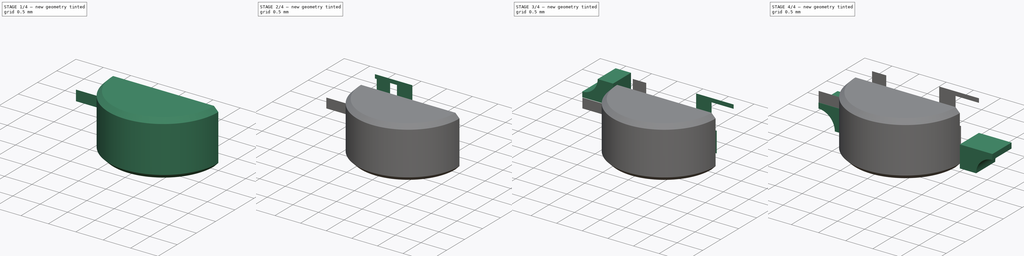
[diagram: build sequence overview — one tinted view per stage of 4, left to right]
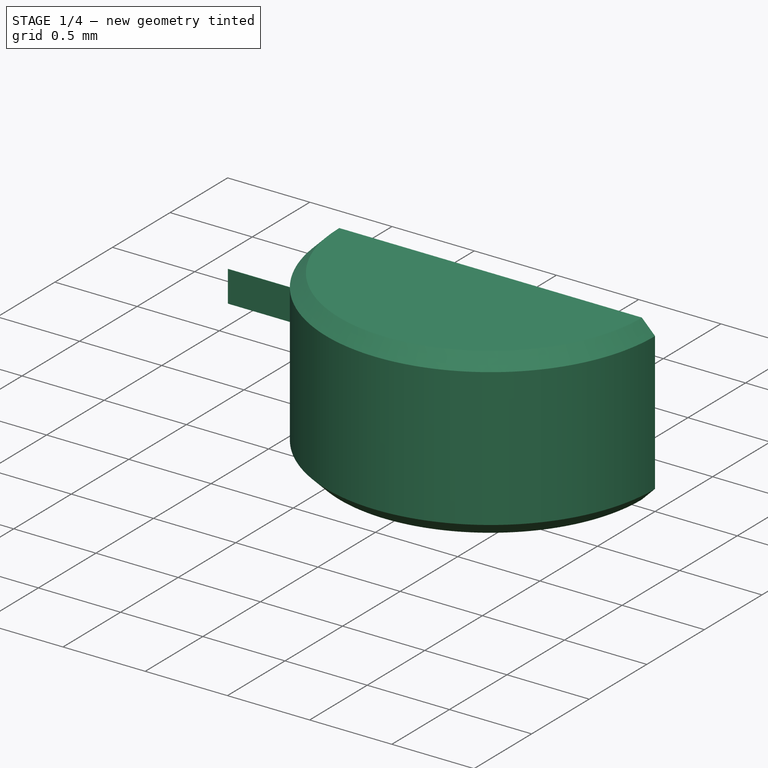
[diagram: stage 1 of 4 — iso view after this stage's code; geometry added in this stage tinted green]
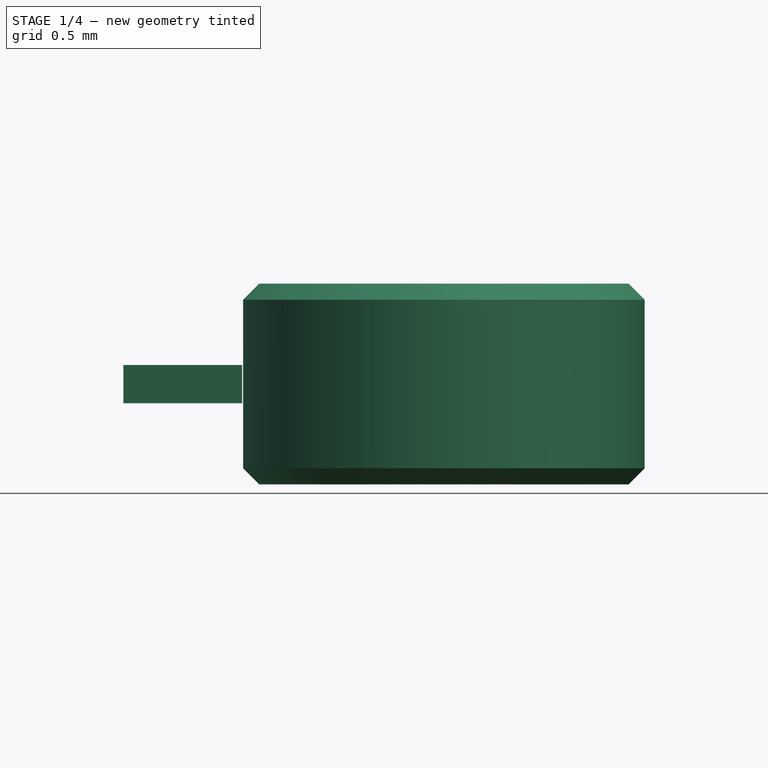
[diagram: stage 1 of 4 — front view after this stage's code; geometry added in this stage tinted green]
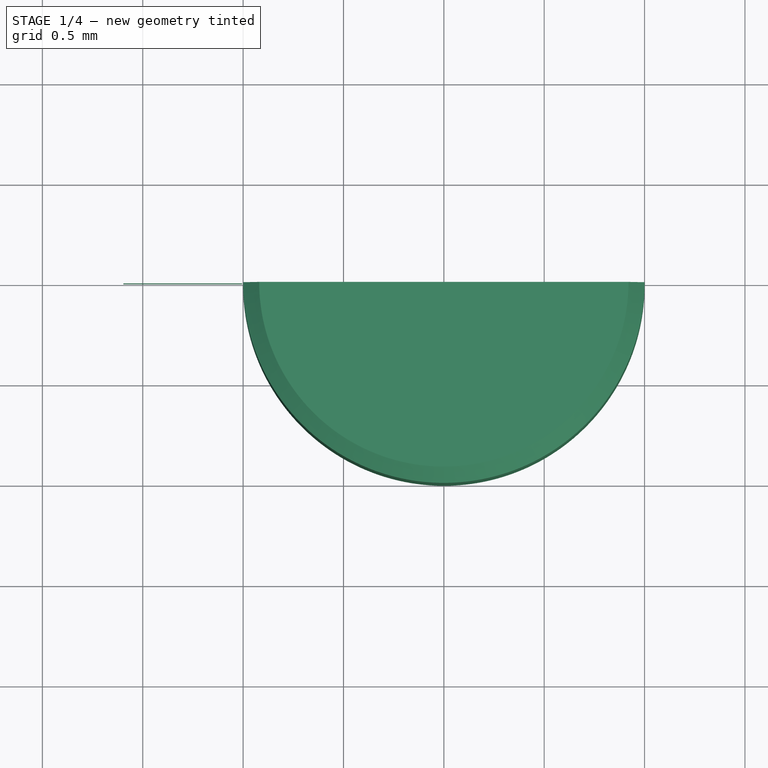
[diagram: stage 1 of 4 — top view after this stage's code; geometry added in this stage tinted green]
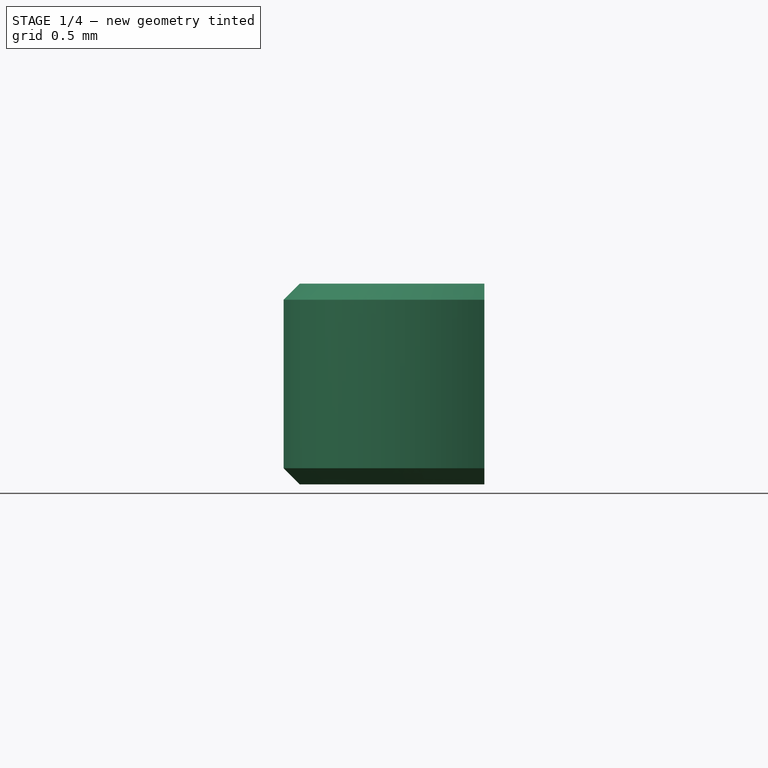
[diagram: stage 1 of 4 — right view after this stage's code; geometry added in this stage tinted green]
FCSTD DOCUMENT  (FreeCAD 1.0R39285 (Git))
Label: LED_RGB_TUOZHAN_P4-1204RGBWS2-1.5T-A_Horizontal
License: All rights reserved
LicenseURL: https://en.wikipedia.org/wiki/All_rights_reserved
objects: Sketcher::SketchObject×7, PartDesign::Pad×6, PartDesign::Body×6, PartDesign::ShapeBinder×6, PartDesign::Plane×5, Part::Mirroring×4, PartDesign::Chamfer×1
note: 56 computed .brp shape members not serialized (recipe doc carries the construction recipe); baked Part::Feature solids carry a one-line shape summary decoded from their .brp

FEATURE [PartDesign::Body] Body
  AllowCompound = false
  Group = -> [Sketch,Pad]
  Origin = -> Origin
  Tip = -> Pad
FEATURE [PartDesign::ShapeBinder] CopyPad
  Placement = pos=(0,-0.5,1e-16) rot=(0,0,1;0rad)
  TraceSupport = false
FEATURE [PartDesign::Plane] DatumPlane
  AttachmentSupport = -> [CopyPad]
  Length = 60
  MapMode = 5
  Placement = pos=(0,-0.5,1e-16) rot=(1,0,0;1.5708rad)
  ResizeMode = 0
  Width = 60
FEATURE [Sketcher::SketchObject] Sketch002
  ArcFitTolerance = 1e-06
  AttachmentSupport = -> [DatumPlane]
  FullyConstrained = true
  MakeInternals = false
  MapMode = 3
  Placement = pos=(0,-0.5,1e-16) rot=(1,0,0;3.14159rad)
  sketch-geometry (2):
    g0: ArcOfCircle CenterX=0 CenterY=0 CenterZ=0 NormalX=0 NormalY=0 NormalZ=1 AngleXU=0 Radius=1 StartAngle=0 EndAngle=3.14159
    g1: LineSegment StartX=-1 StartY=1e-16 StartZ=0 EndX=1 EndY=0 EndZ=0
  constraints (6):
    c: Radius(g0) = 1
    c: Coincident(g0,g-1)
    c: PointOnObject(g0,g-1)
    c: PointOnObject(g0,g-1)
    c: Coincident(g1,g0)
    c: Coincident(g1,g0)
FEATURE [PartDesign::Pad] Pad001
  Direction = (0,0,-1)
  Length = 1
  Length2 = 10
  Midplane = true
  Placement = pos=(0,-0.5,1e-16) rot=(1,0,0;1.5708rad)
  Profile = -> Sketch002
  ReferenceAxis = -> Sketch002 [N_Axis]
  Refine = true
  Suppressed = false
  Type = 0
FEATURE [PartDesign::ShapeBinder] CopyPad003
  Placement = pos=(0,0,0) rot=(1,0,0;1.5708rad)
  TraceSupport = false
FEATURE [PartDesign::Chamfer] Chamfer
  Angle = 45
  Base = -> Pad001 [Edge4,Edge3]
  BaseFeature = -> Pad001
  ChamferType = 0
  FlipDirection = false
  Placement = pos=(0,-0.5,1e-16) rot=(1,0,0;1.5708rad)
  Refine = true
  Size = 0.08
  Size2 = 1
  SupportTransform = false
  Suppressed = false
  UseAllEdges = false
FEATURE [PartDesign::Body] Body001
  AllowCompound = false
  Group = -> [DatumPlane,CopyPad,Sketch002,Pad001,Chamfer]
  Origin = -> Origin001
  Tip = -> Chamfer
FEATURE [PartDesign::ShapeBinder] CopyPad004
  Placement = pos=(0,-0.5,1e-16) rot=(0,0,1;0rad)
  TraceSupport = false
FEATURE [PartDesign::Body] Body004
  AllowCompound = false
  Group = -> [DatumPlane003,CopyPad002,Sketch005,Pad004,CopyPad003,CopyPad004]
  Origin = -> Origin004
  Tip = -> Pad004
FEATURE [PartDesign::ShapeBinder] CopyPad005
  Placement = pos=(0,-0.5,1e-16) rot=(0,0,1;0rad)
  TraceSupport = false
FEATURE [PartDesign::Plane] DatumPlane004
  AttachmentSupport = -> [CopyPad005]
  Length = 60
  MapMode = 5
  Placement = pos=(0,-0.5,1e-16) rot=(1,0,0;1.5708rad)
  ResizeMode = 0
  Width = 60
FEATURE [Sketcher::SketchObject] Sketch006
  ArcFitTolerance = 1e-06
  AttachmentSupport = -> [DatumPlane004]
  FullyConstrained = false
  MakeInternals = false
  MapMode = 5
  Placement = pos=(0,-0.5,1e-16) rot=(1,0,0;1.5708rad)
  sketch-geometry (4):
    g0: LineSegment StartX=-1.59633 StartY=0.094645 StartZ=0 EndX=-1.59633 EndY=-0.095591 EndZ=0
    g1: LineSegment StartX=-1.59633 StartY=-0.095591 StartZ=0 EndX=-1.00528 EndY=-0.095591 EndZ=0
    g2: LineSegment StartX=-1.00528 StartY=-0.095591 StartZ=0 EndX=-1.00528 EndY=0.094645 EndZ=0
    g3: LineSegment StartX=-1.00528 StartY=0.094645 StartZ=0 EndX=-1.59633 EndY=0.094645 EndZ=0
  constraints (8):
    c: Coincident(g0,g1)
    c: Coincident(g1,g2)
    c: Coincident(g2,g3)
    c: Coincident(g3,g0)
    c: Vertical(g0)
    c: Vertical(g2)
    c: Horizontal(g1)
    c: Horizontal(g3)
FEATURE [PartDesign::Pad] Pad005
  Direction = (0,-1,2e-16)
  Length = 0.002
  Length2 = 10
  Placement = pos=(0,-0.5,1e-16) rot=(1,0,0;1.5708rad)
  Profile = -> Sketch006
  ReferenceAxis = -> Sketch006 [N_Axis]
  Refine = true
  Suppressed = false
  Type = 0
FEATURE [PartDesign::Body] Body006
  AllowCompound = false
  Group = -> [DatumPlane004,CopyPad005,Sketch006,Pad005]
  Origin = -> Origin006
  Tip = -> Pad005
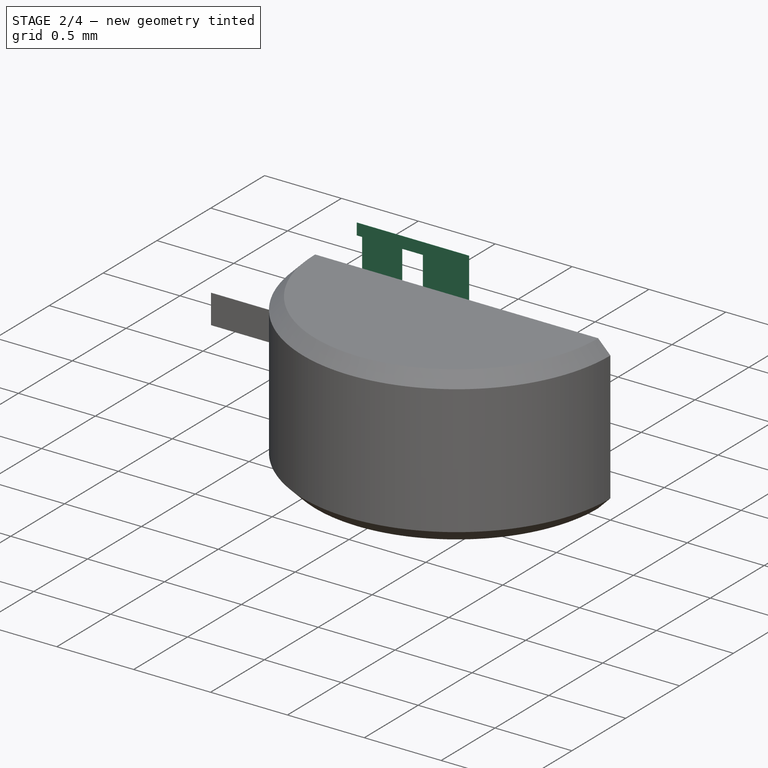
[diagram: stage 2 of 4 — iso view after this stage's code; geometry added in this stage tinted green]
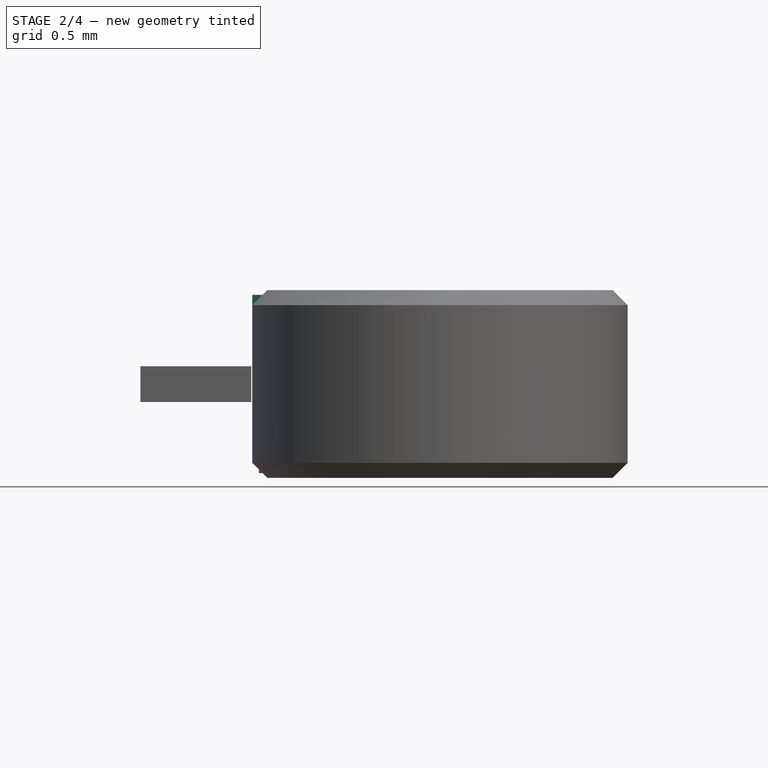
[diagram: stage 2 of 4 — front view after this stage's code; geometry added in this stage tinted green]
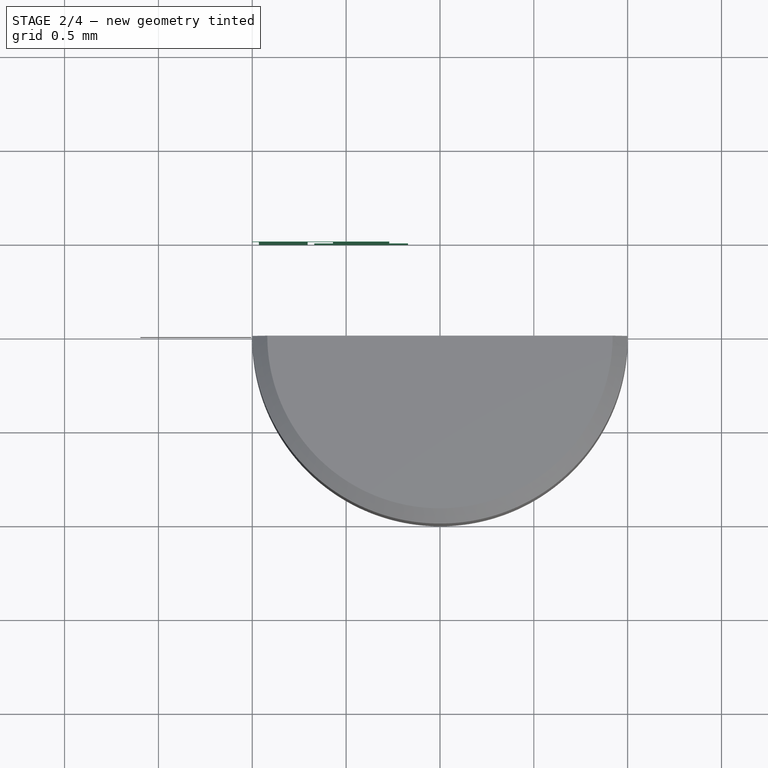
[diagram: stage 2 of 4 — top view after this stage's code; geometry added in this stage tinted green]
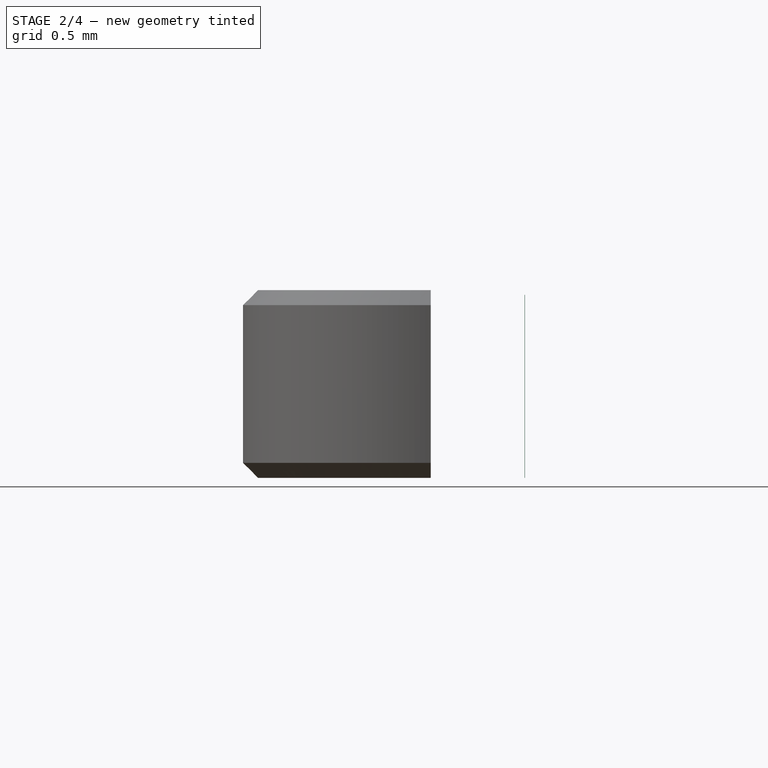
[diagram: stage 2 of 4 — right view after this stage's code; geometry added in this stage tinted green]
FEATURE [Sketcher::SketchObject] Sketch
  ArcFitTolerance = 1e-06
  AttachmentSupport = -> [XZ_Plane]
  FullyConstrained = true
  MakeInternals = false
  MapMode = 5
  Placement = pos=(0,0,0) rot=(1,0,0;1.5708rad)
  sketch-geometry (20):
    g0: LineSegment [constr] StartX=-1.3 StartY=0.5 StartZ=0 EndX=1.3 EndY=0.5 EndZ=0
    g1: LineSegment [constr] StartX=-1.3 StartY=-0.5 StartZ=0 EndX=1.3 EndY=-0.5 EndZ=0
    g2: LineSegment [constr] StartX=1.6 StartY=0.2 StartZ=0 EndX=1.6 EndY=-0.2 EndZ=0
    g3: ArcOfCircle [constr] CenterX=1.6 CenterY=0.5 CenterZ=0 NormalX=0 NormalY=0 NormalZ=1 AngleXU=0 Radius=0.3 StartAngle=3.14159 EndAngle=4.71239
    g4: ArcOfCircle [constr] CenterX=1.6 CenterY=-0.5 CenterZ=0 NormalX=0 NormalY=0 NormalZ=1 AngleXU=0 Radius=0.3 StartAngle=1.5708 EndAngle=3.14159
    g5: LineSegment [constr] StartX=-1.6 StartY=0.2 StartZ=0 EndX=-1.6 EndY=-0.2 EndZ=0
    g6: ArcOfCircle [constr] CenterX=-1.6 CenterY=-0.5 CenterZ=0 NormalX=0 NormalY=0 NormalZ=1 AngleXU=0 Radius=0.3 StartAngle=0 EndAngle=1.5708
    g7: ArcOfCircle [constr] CenterX=-1.6 CenterY=0.5 CenterZ=0 NormalX=0 NormalY=0 NormalZ=1 AngleXU=0 Radius=0.3 StartAngle=4.71239 EndAngle=6.28319
    g8: LineSegment StartX=-1 StartY=0.5 StartZ=0 EndX=1 EndY=0.5 EndZ=0
    g9: LineSegment StartX=1 StartY=0.5 StartZ=0 EndX=1 EndY=0.1 EndZ=0
    g10: LineSegment StartX=1 StartY=0.1 StartZ=0 EndX=1.6 EndY=0.1 EndZ=0
    g11: LineSegment StartX=1.6 StartY=0.1 StartZ=0 EndX=1.6 EndY=-0.1 EndZ=0
    g12: LineSegment StartX=1.6 StartY=-0.1 StartZ=0 EndX=1 EndY=-0.1 EndZ=0
    g13: LineSegment StartX=1 StartY=-0.1 StartZ=0 EndX=1 EndY=-0.5 EndZ=0
    g14: LineSegment StartX=1 StartY=-0.5 StartZ=0 EndX=-1 EndY=-0.5 EndZ=0
    g15: LineSegment StartX=-1 StartY=-0.5 StartZ=0 EndX=-1 EndY=-0.1 EndZ=0
    g16: LineSegment StartX=-1 StartY=-0.1 StartZ=0 EndX=-1.6 EndY=-0.1 EndZ=0
    g17: LineSegment StartX=-1.6 StartY=-0.1 StartZ=0 EndX=-1.6 EndY=0.1 EndZ=0
    g18: LineSegment StartX=-1.6 StartY=0.1 StartZ=0 EndX=-1 EndY=0.1 EndZ=0
    g19: LineSegment StartX=-1 StartY=0.1 StartZ=0 EndX=-1 EndY=0.5 EndZ=0
  constraints (63):
    c: Horizontal(g0)
    c: Horizontal(g1)
    c: DistanceY(g1,g0) = 1
    c: Vertical(g2)
    c: Coincident(g3,g0)
    c: Coincident(g3,g2)
    c: Radius(g3) = 0.3
    c: Coincident(g4,g2)
    c: Coincident(g4,g1)
    c: Vertical(g5)
    c: Coincident(g6,g1)
    c: Coincident(g6,g5)
    c: Coincident(g7,g0)
    c: Coincident(g7,g5)
    c: Horizontal(g0,g7)
    c: Vertical(g5,g7)
    c: Vertical(g6,g5)
    c: Horizontal(g6,g1)
    c: Horizontal(g3,g0)
    c: Vertical(g3,g2)
    c: Vertical(g2,g4)
    c: Horizontal(g1,g4)
    c: Equal(g3,g4)
    c: Equal(g3,g6)
    c: Equal(g3,g7)
    c: Symmetric(g0,g1,g-1)
    c: DistanceX(g5,g2) = 3.2
    c: PointOnObject(g8,g0)
    c: PointOnObject(g8,g0)
    c: Coincident(g9,g8)
    c: Coincident(g10,g9)
    c: PointOnObject(g10,g2)
    c: Coincident(g11,g10)
    c: PointOnObject(g11,g2)
    c: Coincident(g12,g11)
    c: Coincident(g13,g12)
    c: PointOnObject(g13,g1)
    c: Coincident(g14,g13)
    c: PointOnObject(g14,g1)
    c: Coincident(g15,g14)
    c: Coincident(g16,g15)
    c: PointOnObject(g16,g5)
    c: Coincident(g17,g16)
    c: PointOnObject(g17,g5)
    c: Coincident(g18,g17)
    c: Coincident(g19,g8)
    c: Vertical(g9)
    c: Horizontal(g10)
    c: DistanceY(g10,g2) = 0.1
    c: Horizontal(g12)
    c: Vertical(g13)
    c: Vertical(g19)
    c: Coincident(g19,g18)
    c: Horizontal(g18)
    c: Horizontal(g16)
    c: Vertical(g15)
    c: DistanceX(g-1,g8) = 1
    c: Equal(g13,g9)
    c: Equal(g10,g12)
    c: Equal(g18,g10)
    c: Equal(g13,g15)
    c: Equal(g19,g9)
    c: Equal(g16,g12)
FEATURE [PartDesign::Pad] Pad
  Direction = (0,-1,2e-16)
  Length = 0.5
  Length2 = 10
  Placement = pos=(0,0,0) rot=(1,0,0;1.5708rad)
  Profile = -> Sketch
  ReferenceAxis = -> Sketch [N_Axis]
  Refine = true
  Suppressed = false
  Type = 0
FEATURE [PartDesign::Plane] DatumPlane002
  Length = 60
  MapMode = 2
  Placement = pos=(0,0,0) rot=(1,0,0;1.5708rad)
  ResizeMode = 0
  Width = 60
FEATURE [Sketcher::SketchObject] Sketch004
  ArcFitTolerance = 1e-06
  AttachmentSupport = -> [DatumPlane002]
  ExternalGeometry = -> [Sketch,Pad]
  FullyConstrained = true
  MakeInternals = false
  MapMode = 5
  Placement = pos=(0,0,0) rot=(1,0,0;1.5708rad)
  sketch-geometry (14):
    g0: LineSegment StartX=-0.27 StartY=-0.5 StartZ=0 EndX=-0.27 EndY=-0.475 EndZ=0
    g1: LineSegment StartX=-0.27 StartY=-0.475 StartZ=0 EndX=-0.17 EndY=-0.475 EndZ=0
    g2: LineSegment StartX=-0.17 StartY=-0.475 StartZ=0 EndX=-0.17 EndY=-0.075 EndZ=0
    g3: LineSegment StartX=-0.17 StartY=-0.075 StartZ=0 EndX=-0.27 EndY=-0.075 EndZ=0
    g4: LineSegment StartX=-0.27 StartY=-0.075 StartZ=0 EndX=-0.27 EndY=0.475 EndZ=0
    g5: LineSegment StartX=-0.27 StartY=0.475 StartZ=0 EndX=-1 EndY=0.475 EndZ=0
    g6: LineSegment StartX=-0.57 StartY=-0.5 StartZ=0 EndX=-0.57 EndY=-0.475 EndZ=0
    g7: LineSegment StartX=-0.57 StartY=-0.475 StartZ=0 EndX=-0.67 EndY=-0.475 EndZ=0
    g8: LineSegment StartX=-0.67 StartY=-0.475 StartZ=0 EndX=-0.67 EndY=-0.075 EndZ=0
    g9: LineSegment StartX=-0.67 StartY=-0.075 StartZ=0 EndX=-0.57 EndY=-0.075 EndZ=0
    g10: LineSegment StartX=-0.57 StartY=-0.075 StartZ=0 EndX=-0.57 EndY=0.4 EndZ=0
    g11: LineSegment StartX=-0.57 StartY=0.4 StartZ=0 EndX=-1 EndY=0.4 EndZ=0
    g12: LineSegment StartX=-1 StartY=0.4 StartZ=0 EndX=-1 EndY=0.475 EndZ=0
    g13: LineSegment StartX=-0.27 StartY=-0.5 StartZ=0 EndX=-0.57 EndY=-0.5 EndZ=0
  constraints (42):
    c: PointOnObject(g0,g-3)
    c: Vertical(g0)
    c: Coincident(g1,g0)
    c: Horizontal(g1)
    c: Coincident(g2,g1)
    c: Vertical(g2)
    c: Coincident(g3,g2)
    c: Horizontal(g3)
    c: Vertical(g4)
    c: Coincident(g5,g4)
    c: Horizontal(g5)
    c: PointOnObject(g6,g-3)
    c: Vertical(g6)
    c: Coincident(g7,g6)
    c: Horizontal(g7)
    c: Vertical(g8)
    c: Horizontal(g9)
    c: Coincident(g10,g9)
    c: Vertical(g10)
    c: Coincident(g11,g10)
    c: Horizontal(g11)
    c: Coincident(g12,g11)
    c: Coincident(g12,g5)
    c: Vertical(g12)
    c: DistanceX(g1,g-1) = 0.17
    c: Coincident(g8,g7)
    c: DistanceX(g7,g-1) = 0.67
    c: Coincident(g8,g9)
    c: Coincident(g4,g3)
    c: PointOnObject(g5,g-4)
    c: DistanceX(g0,g1) = 0.1
    c: Equal(g7,g1)
    c: DistanceY(g0,g0) = 0.025
    c: Equal(g6,g0)
    c: DistanceY(g-5,g8) = 0.025
    c: Equal(g8,g2)
    c: Equal(g9,g7)
    c: Equal(g3,g1)
    c: DistanceY(g5,g-4) = 0.025
    c: DistanceY(g11,g5) = 0.075
    c: Coincident(g13,g0)
    c: Coincident(g13,g6)
FEATURE [Sketcher::SketchObject] MirroredSketch
  ArcFitTolerance = 1e-06
  FullyConstrained = false
  MakeInternals = false
  Placement = pos=(0,0,0) rot=(1,0,0;1.5708rad)
  sketch-geometry (14):
    g0: LineSegment StartX=0.27 StartY=-0.5 StartZ=0 EndX=0.27 EndY=-0.475 EndZ=0
    g1: LineSegment StartX=0.27 StartY=-0.475 StartZ=0 EndX=0.17 EndY=-0.475 EndZ=0
    g2: LineSegment StartX=0.17 StartY=-0.475 StartZ=0 EndX=0.17 EndY=-0.075 EndZ=0
    g3: LineSegment StartX=0.17 StartY=-0.075 StartZ=0 EndX=0.27 EndY=-0.075 EndZ=0
    g4: LineSegment StartX=0.27 StartY=-0.075 StartZ=0 EndX=0.27 EndY=0.475 EndZ=0
    g5: LineSegment StartX=0.27 StartY=0.475 StartZ=0 EndX=1 EndY=0.475 EndZ=0
    g6: LineSegment StartX=0.57 StartY=-0.5 StartZ=0 EndX=0.57 EndY=-0.475 EndZ=0
    g7: LineSegment StartX=0.57 StartY=-0.475 StartZ=0 EndX=0.67 EndY=-0.475 EndZ=0
    g8: LineSegment StartX=0.67 StartY=-0.475 StartZ=0 EndX=0.67 EndY=-0.075 EndZ=0
    g9: LineSegment StartX=0.67 StartY=-0.075 StartZ=0 EndX=0.57 EndY=-0.075 EndZ=0
    g10: LineSegment StartX=0.57 StartY=-0.075 StartZ=0 EndX=0.57 EndY=0.4 EndZ=0
    g11: LineSegment StartX=0.57 StartY=0.4 StartZ=0 EndX=1 EndY=0.4 EndZ=0
    g12: LineSegment StartX=1 StartY=0.4 StartZ=0 EndX=1 EndY=0.475 EndZ=0
    g13: LineSegment StartX=0.27 StartY=-0.5 StartZ=0 EndX=0.57 EndY=-0.5 EndZ=0
  constraints (32):
    c: Vertical(g0)
    c: Coincident(g1,g0)
    c: Horizontal(g1)
    c: Coincident(g2,g1)
    c: Vertical(g2)
    c: Coincident(g3,g2)
    c: Horizontal(g3)
    c: Vertical(g4)
    c: Coincident(g5,g4)
    c: Horizontal(g5)
    c: Vertical(g6)
    c: Coincident(g7,g6)
    c: Horizontal(g7)
    c: Vertical(g8)
    c: Horizontal(g9)
    c: Coincident(g10,g9)
    c: Vertical(g10)
    c: Coincident(g11,g10)
    c: Horizontal(g11)
    c: Coincident(g12,g11)
    c: Coincident(g12,g5)
    c: Vertical(g12)
    c: Coincident(g8,g7)
    c: Coincident(g8,g9)
    c: Coincident(g4,g3)
    c: Equal(g7,g1)
    c: Equal(g6,g0)
    c: Equal(g8,g2)
    c: Equal(g9,g7)
    c: Equal(g3,g1)
    c: Coincident(g13,g0)
    c: Coincident(g13,g6)
FEATURE [PartDesign::Pad] Pad003
  Direction = (0,-1,2e-16)
  Length = 0.002
  Length2 = 10
  Placement = pos=(0,0,0) rot=(1,0,0;1.5708rad)
  Profile = -> Sketch004
  ReferenceAxis = -> Sketch004 [N_Axis]
  Refine = true
  Reversed = true
  Suppressed = false
  Type = 0
FEATURE [PartDesign::ShapeBinder] CopyPad002
  TraceSupport = false
FEATURE [PartDesign::Plane] DatumPlane003
  AttachmentSupport = -> [CopyPad002]
  Length = 60
  MapMode = 5
  Placement = pos=(0,0,0) rot=(0,0.707107,0.707107;3.14159rad)
  ResizeMode = 0
  Width = 60
FEATURE [Sketcher::SketchObject] Sketch005
  ArcFitTolerance = 1e-06
  AttachmentSupport = -> [CopyPad002]
  ExternalGeometry = -> [CopyPad002]
  FullyConstrained = true
  MakeInternals = false
  MapMode = 5
  Placement = pos=(0,0,0) rot=(0,0.707107,0.707107;3.14159rad)
  sketch-geometry (4):
    g0: LineSegment StartX=0.705 StartY=0.4 StartZ=0 EndX=0.705 EndY=-0.475 EndZ=0
    g1: LineSegment StartX=0.705 StartY=-0.475 StartZ=0 EndX=0.965 EndY=-0.475 EndZ=0
    g2: LineSegment StartX=0.965 StartY=-0.475 StartZ=0 EndX=0.965 EndY=0.4 EndZ=0
    g3: LineSegment StartX=0.965 StartY=0.4 StartZ=0 EndX=0.705 EndY=0.4 EndZ=0
  constraints (12):
    c: Coincident(g0,g1)
    c: Coincident(g1,g2)
    c: Coincident(g2,g3)
    c: Coincident(g3,g0)
    c: Vertical(g0)
    c: Vertical(g2)
    c: Horizontal(g1)
    c: Horizontal(g3)
    c: DistanceY(g2,g-4) = 0.1
    c: DistanceX(g2,g-4) = 0.035
    c: DistanceY(g1,g2) = 0.875
    c: DistanceX(g1,g1) = 0.26
FEATURE [PartDesign::Pad] Pad004
  Direction = (0,1,-2e-16)
  Length = 0.002
  Length2 = 10
  Profile = -> Sketch005
  ReferenceAxis = -> Sketch005 [N_Axis]
  Refine = true
  Suppressed = false
  Type = 0
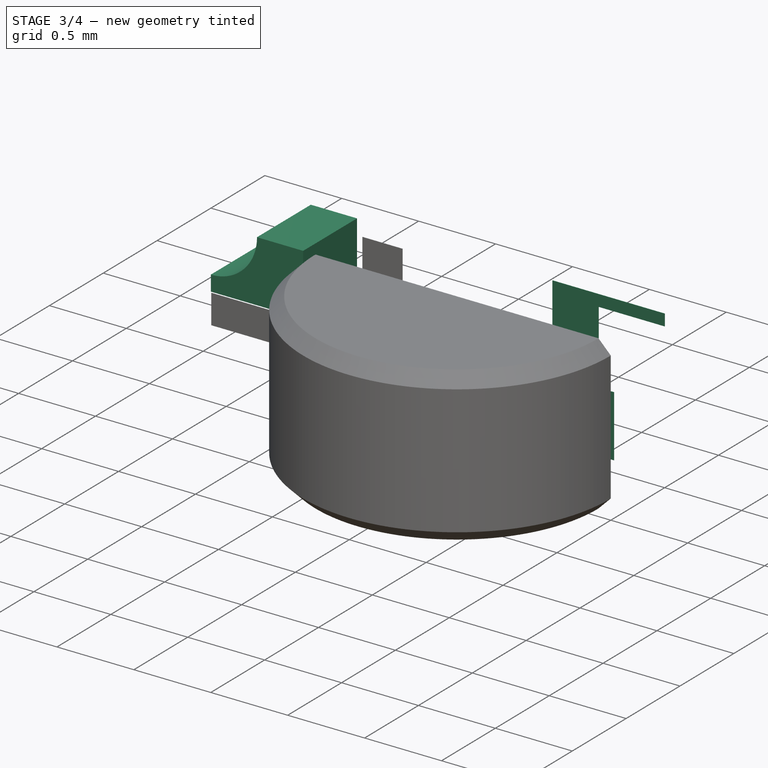
[diagram: stage 3 of 4 — iso view after this stage's code; geometry added in this stage tinted green]
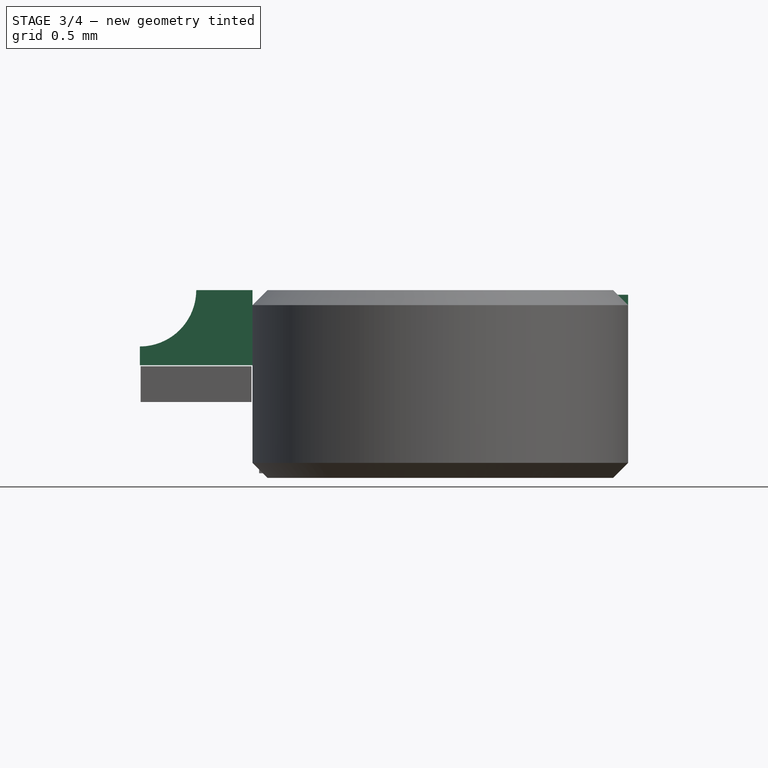
[diagram: stage 3 of 4 — front view after this stage's code; geometry added in this stage tinted green]
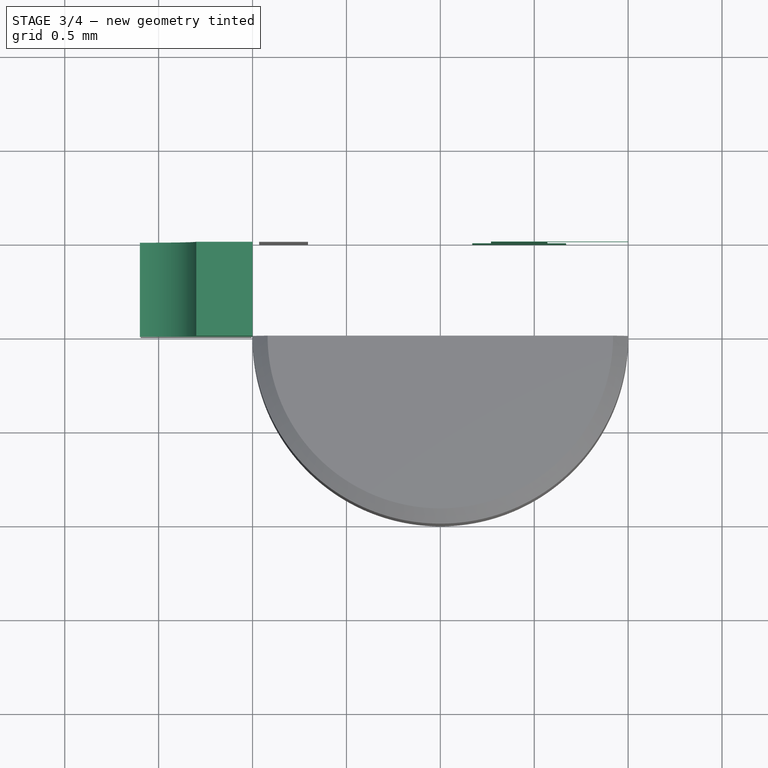
[diagram: stage 3 of 4 — top view after this stage's code; geometry added in this stage tinted green]
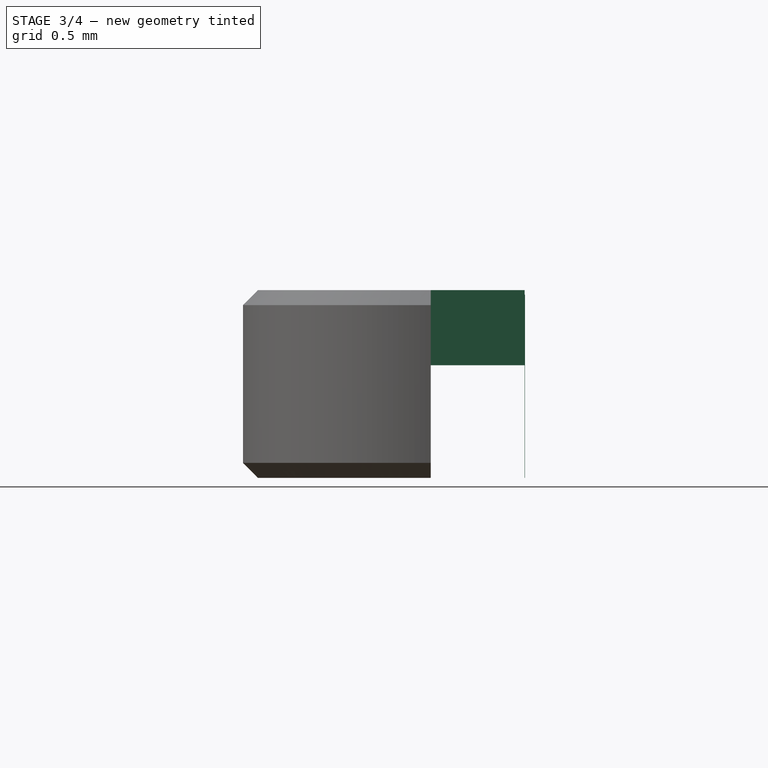
[diagram: stage 3 of 4 — right view after this stage's code; geometry added in this stage tinted green]
FEATURE [PartDesign::ShapeBinder] CopyPad001
  TraceSupport = false
FEATURE [PartDesign::Plane] DatumPlane001
  AttachmentSupport = -> [CopyPad001]
  Length = 60
  MapMode = 5
  Placement = pos=(0,0,0) rot=(0,0.707107,0.707107;3.14159rad)
  ResizeMode = 0
  Width = 60
FEATURE [Sketcher::SketchObject] Sketch003
  ArcFitTolerance = 1e-06
  AttachmentSupport = -> [DatumPlane001]
  ExternalGeometry = -> [CopyPad001]
  FullyConstrained = true
  MakeInternals = false
  MapMode = 5
  Placement = pos=(0,0,0) rot=(0,0.707107,0.707107;3.14159rad)
  sketch-geometry (5):
    g0: ArcOfCircle CenterX=1.6 CenterY=0.5 CenterZ=0 NormalX=0 NormalY=0 NormalZ=1 AngleXU=0 Radius=0.3 StartAngle=3.14159 EndAngle=4.71239
    g1: LineSegment StartX=1.3 StartY=0.5 StartZ=0 EndX=1 EndY=0.5 EndZ=0
    g2: LineSegment StartX=1 StartY=0.5 StartZ=0 EndX=1 EndY=0.1 EndZ=0
    g3: LineSegment StartX=1 StartY=0.1 StartZ=0 EndX=1.6 EndY=0.1 EndZ=0
    g4: LineSegment StartX=1.6 StartY=0.1 StartZ=0 EndX=1.6 EndY=0.2 EndZ=0
  constraints (13):
    c: Horizontal(g0,g-4)
    c: Vertical(g-5,g0)
    c: Radius(g0) = 0.3
    c: Coincident(g1,g0)
    c: Coincident(g1,g-4)
    c: Horizontal(g1)
    c: Coincident(g2,g1)
    c: Coincident(g2,g-5)
    c: Coincident(g3,g2)
    c: Coincident(g3,g-5)
    c: Coincident(g4,g3)
    c: Coincident(g4,g0)
    c: Vertical(g4)
FEATURE [PartDesign::Pad] Pad002
  Direction = (0,1,-2e-16)
  Length = 0.5
  Length2 = 10
  Placement = pos=(0,0,0) rot=(0,0.707107,0.707107;3.14159rad)
  Profile = -> Sketch003
  ReferenceAxis = -> Sketch003 [N_Axis]
  Refine = true
  Reversed = true
  Suppressed = false
  Type = 0
FEATURE [PartDesign::Body] Body003
  AllowCompound = false
  Group = -> [DatumPlane002,Sketch004,MirroredSketch,Pad003]
  Origin = -> Origin003
  Tip = -> Pad003
FEATURE [Part::Mirroring] Part__Mirroring003  label="Pad003 (Mirror #4)"
  Base = (0,0,0)
  Normal = (1,0,0)
  Source = -> Pad003
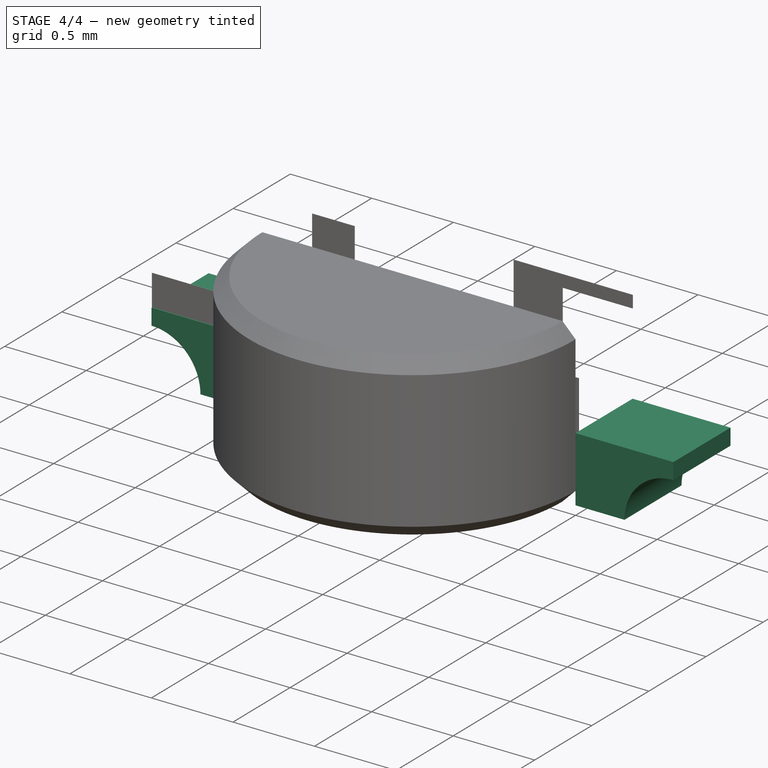
[diagram: stage 4 of 4 — iso view after this stage's code; geometry added in this stage tinted green]
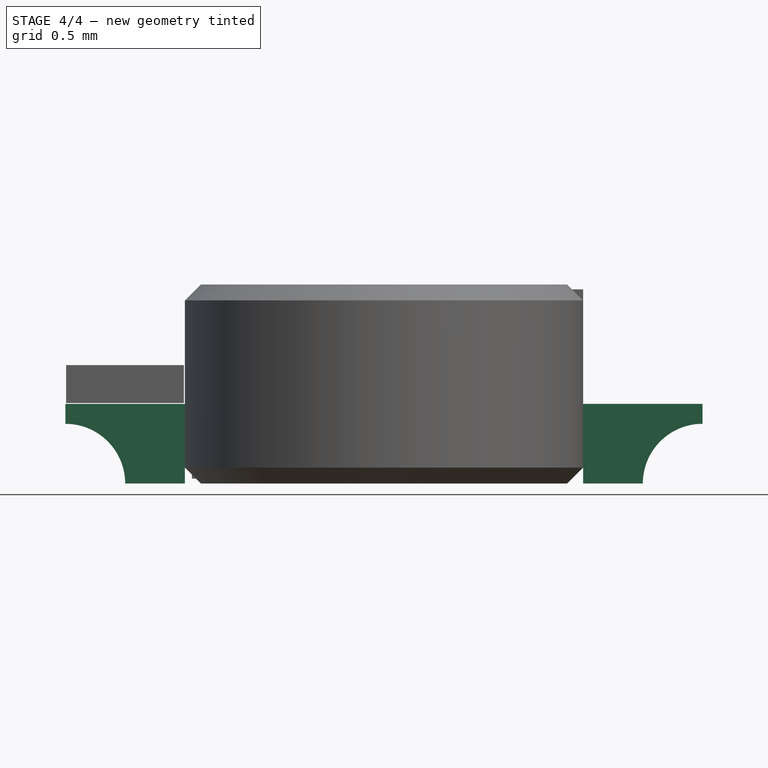
[diagram: stage 4 of 4 — front view after this stage's code; geometry added in this stage tinted green]
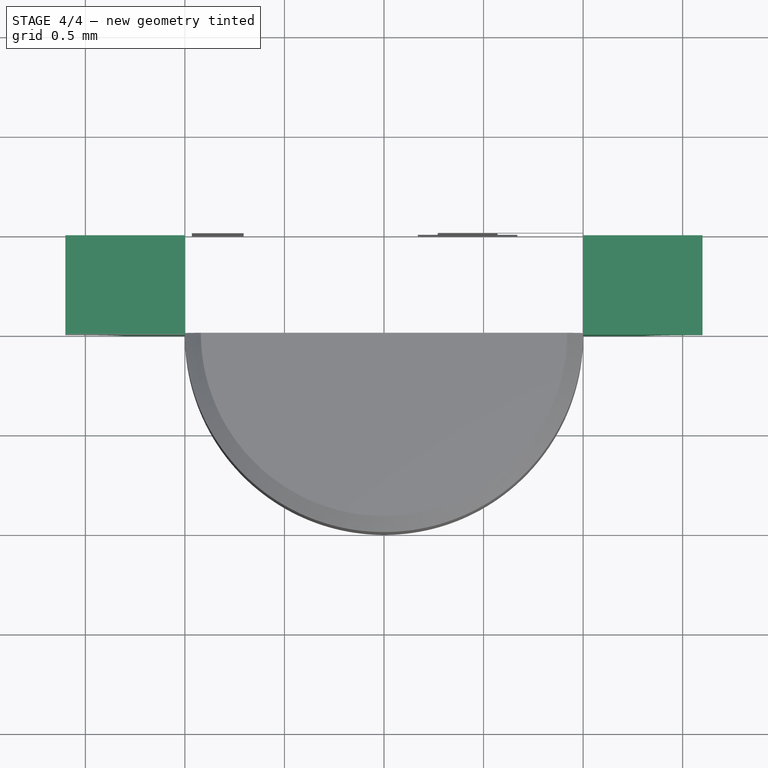
[diagram: stage 4 of 4 — top view after this stage's code; geometry added in this stage tinted green]
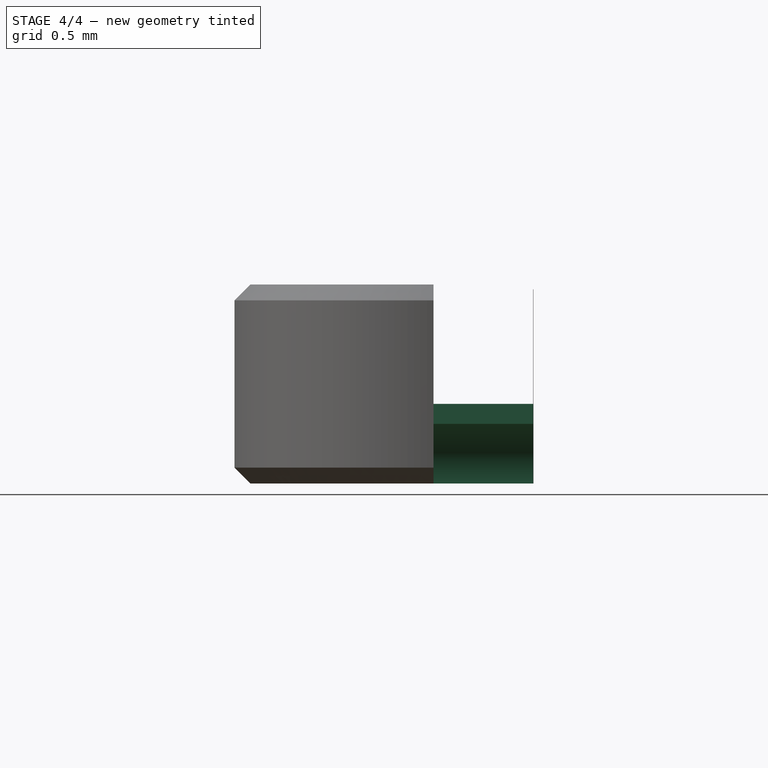
[diagram: stage 4 of 4 — right view after this stage's code; geometry added in this stage tinted green]
FEATURE [PartDesign::Body] Body002
  AllowCompound = false
  Group = -> [DatumPlane001,CopyPad001,Sketch003,Pad002]
  Origin = -> Origin002
  Tip = -> Pad002
FEATURE [Part::Mirroring] Part__Mirroring  label="Pad002 (Mirror #1)"
  Base = (0,0,0)
  Normal = (0,0,1)
  Source = -> Pad002
FEATURE [Part::Mirroring] Part__Mirroring001  label="Pad002 (Mirror #2)"
  Base = (0,0,0)
  Normal = (1,0,0)
  Source = -> Pad002
FEATURE [Part::Mirroring] Part__Mirroring002  label="Pad002 (Mirror #3)"
  Base = (0,0,0)
  Normal = (0,0,1)
  Source = -> Part__Mirroring001
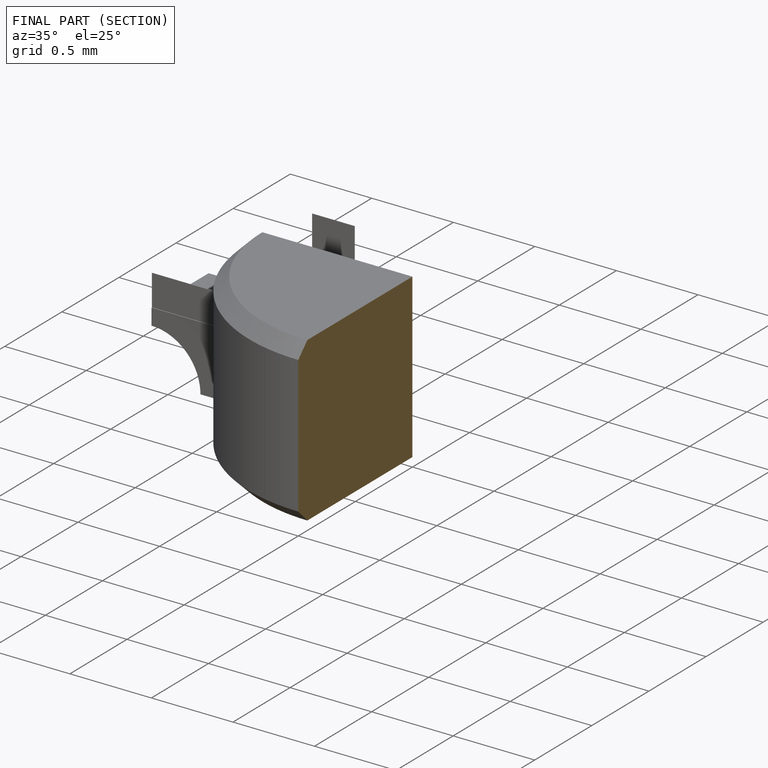
[diagram: finished part — half-section view (interior)]
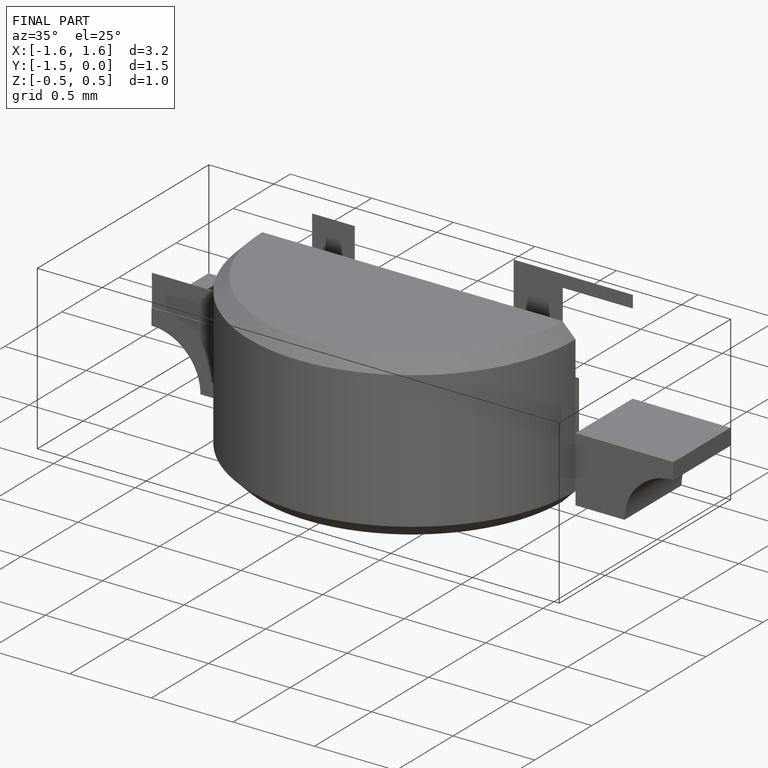
[diagram: finished part — iso view with bounding-box wireframe]
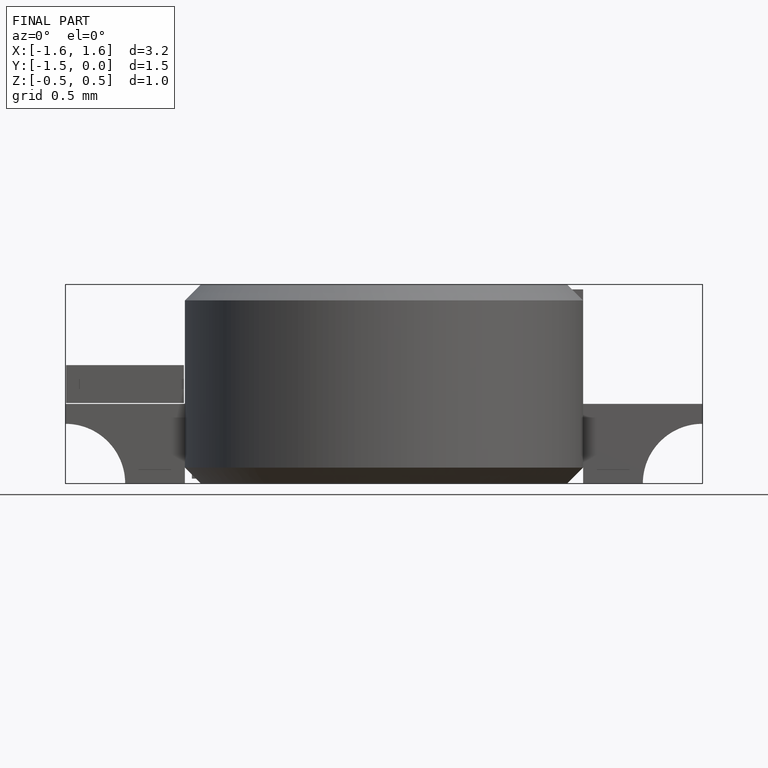
[diagram: finished part — front view with bounding-box wireframe]
